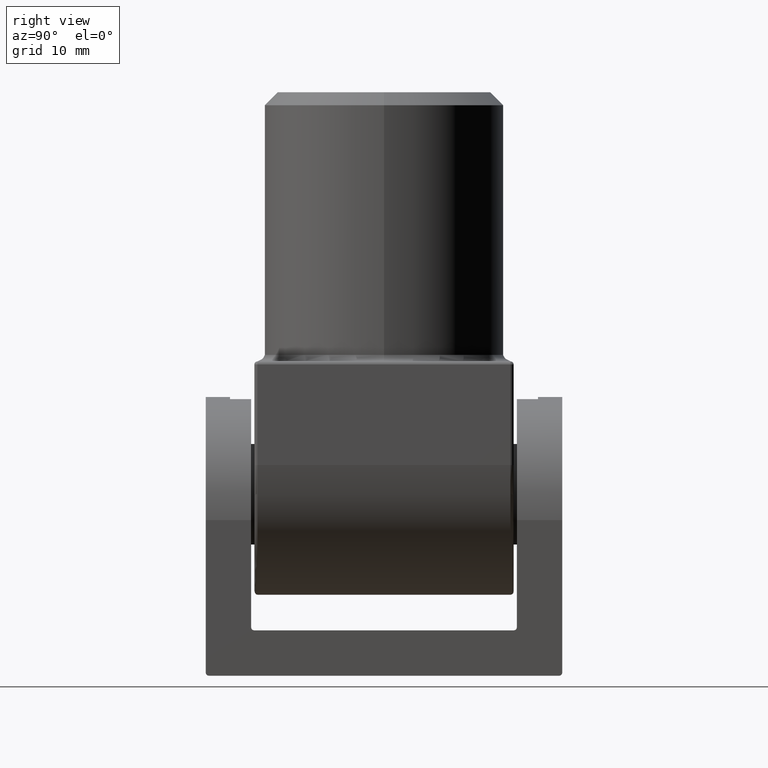
[diagram: clean part render]
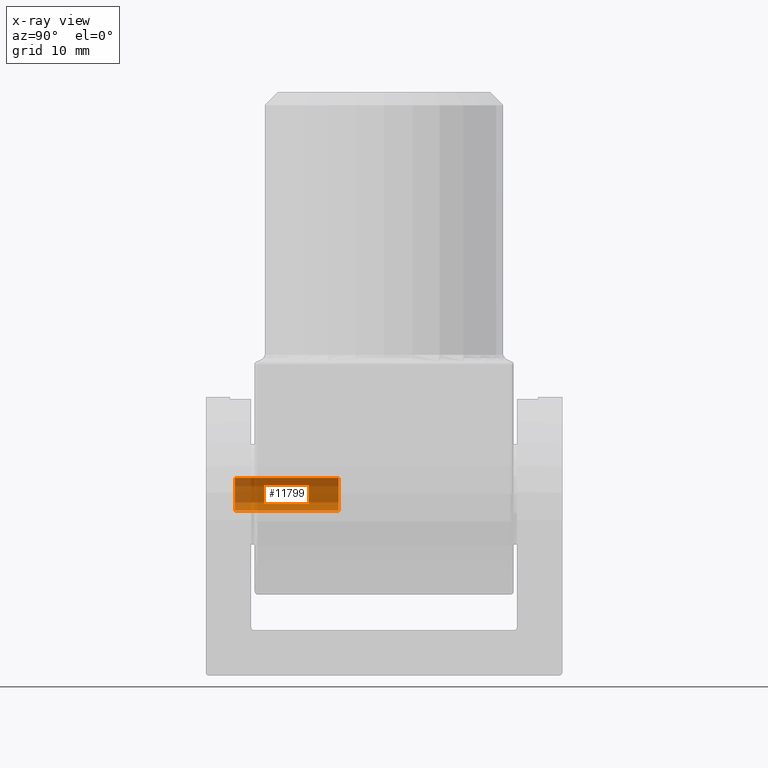
[diagram: x-ray — body ghosted, one internal face saturated and labeled with its STEP entity id]
A machine part, right view, then the same camera in x-ray: the body is ghosted and one INTERNAL B-rep face — a face not visible from any outside direction — is saturated and labeled: STEP entity #11799.
In plain terms, the highlighted cylindrical surface (edge-blend (fillet) strip) has radius 2.5 mm, axis along (-0, -1, -0).
Its self-contained STEP definition (entity closure, byte-faithful):
#986 = ORIENTED_EDGE ( 'NONE', *, *, #12602, .F. ) ;
#1416 = CARTESIAN_POINT ( 'NONE',  ( 3.061616997868377718E-16, -6.999999999999999112, -18.00000000000000711 ) ) ;
#1603 = CARTESIAN_POINT ( 'NONE',  ( 3.061616997868375253E-16, -23.00000000000000711, -18.00000000000001066 ) ) ;
#2441 = CARTESIAN_POINT ( 'NONE',  ( 0.000000000000000000, -23.50000000000000000, -20.50000000000000000 ) ) ;
#2557 = CARTESIAN_POINT ( 'NONE',  ( 0.000000000000000000, -23.00000000000000711, -22.99999999999999289 ) ) ;
#3787 = EDGE_CURVE ( 'NONE', #11531, #12431, #19190, .T. ) ;
#3839 = AXIS2_PLACEMENT_3D ( 'NONE', #2441, #9208, #11189 ) ;
#4147 = AXIS2_PLACEMENT_3D ( 'NONE', #9991, #13299, #21840 ) ;
#5279 = CIRCLE ( 'NONE', #4147, 2.499999999999995115 ) ;
#5560 = VECTOR ( 'NONE', #12295, 1000.000000000000000 ) ;
#6434 = CIRCLE ( 'NONE', #21105, 2.499999999999992006 ) ;
#9208 = DIRECTION ( 'NONE',  ( -0.000000000000000000, -1.000000000000000000, -0.000000000000000000 ) ) ;
#9577 = EDGE_CURVE ( 'NONE', #19913, #16077, #12626, .T. ) ;
#9991 = CARTESIAN_POINT ( 'NONE',  ( 0.000000000000000000, -6.999999999999999112, -20.50000000000000000 ) ) ;
#10645 = ORIENTED_EDGE ( 'NONE', *, *, #18033, .T. ) ;
#11189 = DIRECTION ( 'NONE',  ( 0.000000000000000000, 0.000000000000000000, -1.000000000000000000 ) ) ;
#11523 = CARTESIAN_POINT ( 'NONE',  ( 0.000000000000000000, -6.999999999999999112, -22.99999999999999645 ) ) ;
#11531 = VERTEX_POINT ( 'NONE', #11523 ) ;
#11799 = ADVANCED_FACE ( 'NONE', ( #18157 ), #20280, .F. ) ;
#12295 = DIRECTION ( 'NONE',  ( -0.000000000000000000, -1.000000000000000000, -0.000000000000000000 ) ) ;
#12358 = DIRECTION ( 'NONE',  ( -0.000000000000000000, -1.000000000000000000, -0.000000000000000000 ) ) ;
#12431 = VERTEX_POINT ( 'NONE', #2557 ) ;
#12501 = CARTESIAN_POINT ( 'NONE',  ( 3.061616997868373773E-16, -23.50000000000000000, -18.00000000000001066 ) ) ;
#12602 = EDGE_CURVE ( 'NONE', #19913, #11531, #5279, .T. ) ;
#12626 = LINE ( 'NONE', #12501, #20583 ) ;
#13299 = DIRECTION ( 'NONE',  ( -0.000000000000000000, -1.000000000000000000, -0.000000000000000000 ) ) ;
#13428 = CARTESIAN_POINT ( 'NONE',  ( 0.000000000000000000, -23.50000000000000000, -22.99999999999999289 ) ) ;
#13498 = CARTESIAN_POINT ( 'NONE',  ( 0.000000000000000000, -23.00000000000000711, -20.50000000000000000 ) ) ;
#13968 = EDGE_LOOP ( 'NONE', ( #986, #19794, #10645, #17247 ) ) ;
#16077 = VERTEX_POINT ( 'NONE', #1603 ) ;
#17247 = ORIENTED_EDGE ( 'NONE', *, *, #3787, .F. ) ;
#18033 = EDGE_CURVE ( 'NONE', #16077, #12431, #6434, .T. ) ;
#18157 = FACE_OUTER_BOUND ( 'NONE', #13968, .T. ) ;
#19190 = LINE ( 'NONE', #13428, #5560 ) ;
#19794 = ORIENTED_EDGE ( 'NONE', *, *, #9577, .T. ) ;
#19913 = VERTEX_POINT ( 'NONE', #1416 ) ;
#20280 = CYLINDRICAL_SURFACE ( 'NONE', #3839, 2.499999999999992006 ) ;
#20325 = DIRECTION ( 'NONE',  ( 0.000000000000000000, 0.000000000000000000, 1.000000000000000000 ) ) ;
#20583 = VECTOR ( 'NONE', #12358, 1000.000000000000000 ) ;
#21105 = AXIS2_PLACEMENT_3D ( 'NONE', #13498, #22109, #20325 ) ;
#21840 = DIRECTION ( 'NONE',  ( 0.000000000000000000, 0.000000000000000000, -1.000000000000000000 ) ) ;
#22109 = DIRECTION ( 'NONE',  ( 0.000000000000000000, -1.000000000000000000, 0.000000000000000000 ) ) ;